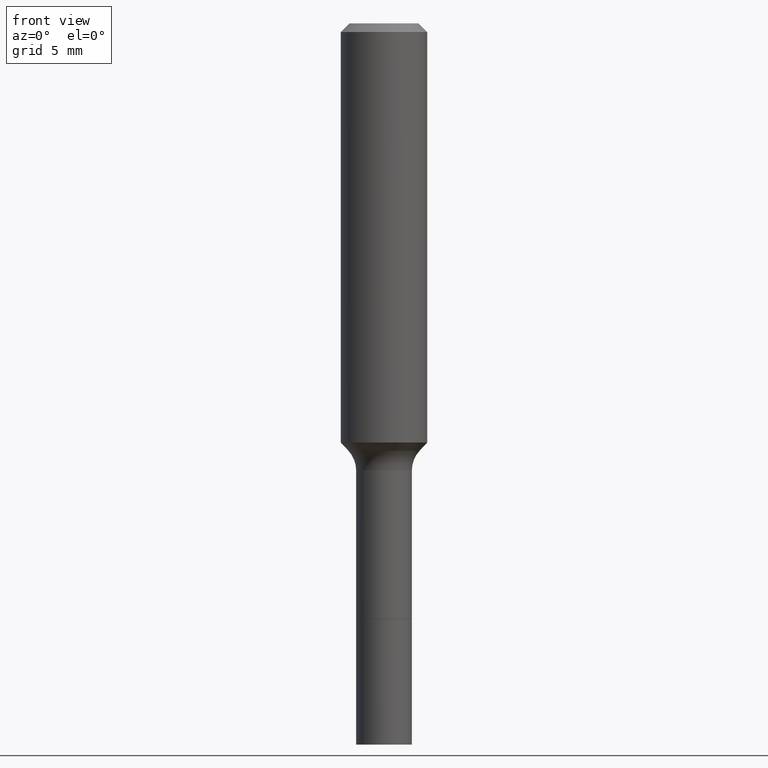
[diagram: clean part render]
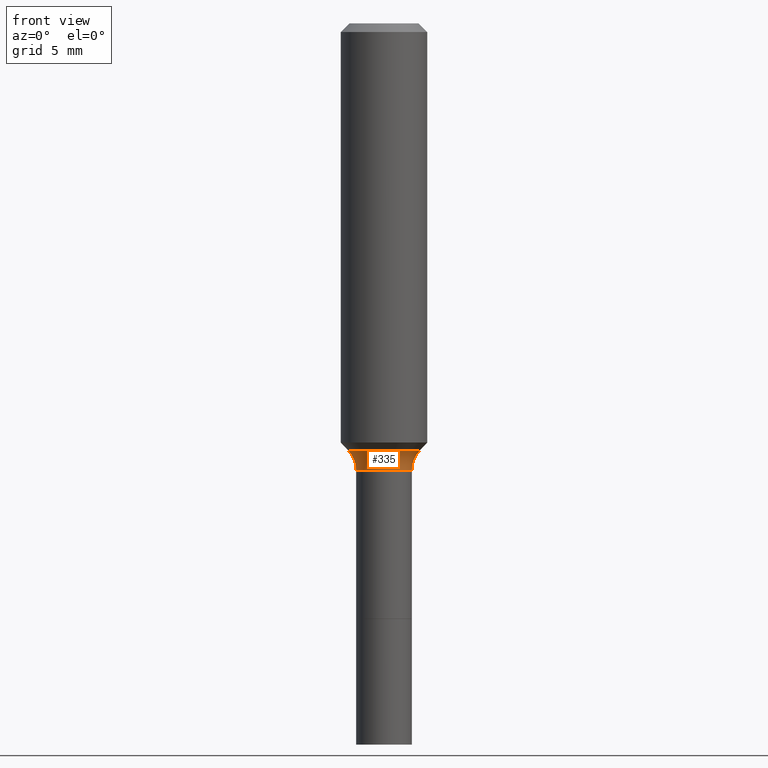
[diagram: same view with one face highlighted and labeled with its STEP entity id]
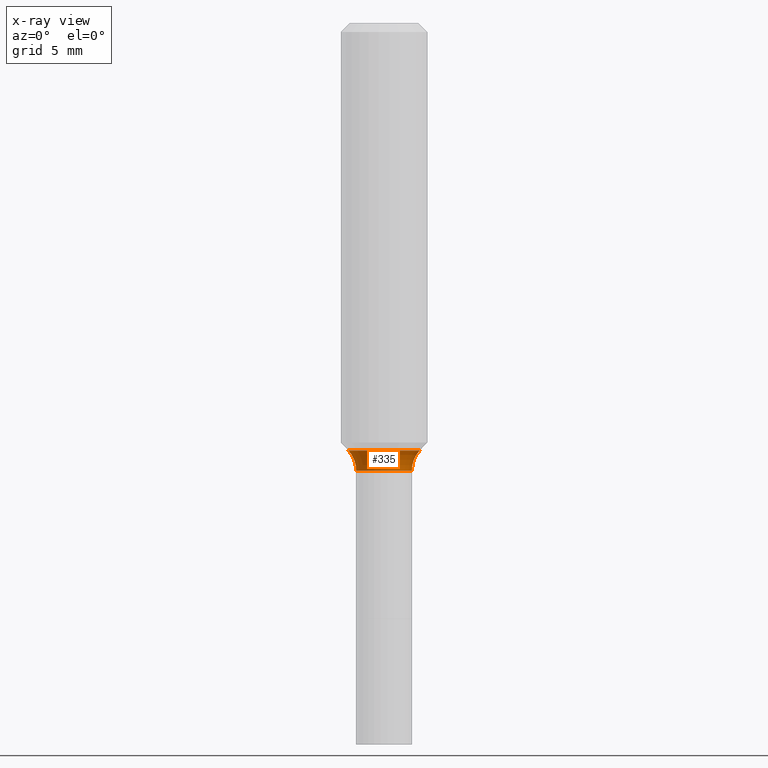
[diagram: x-ray of the same camera — body ghosted, the highlighted face saturated]
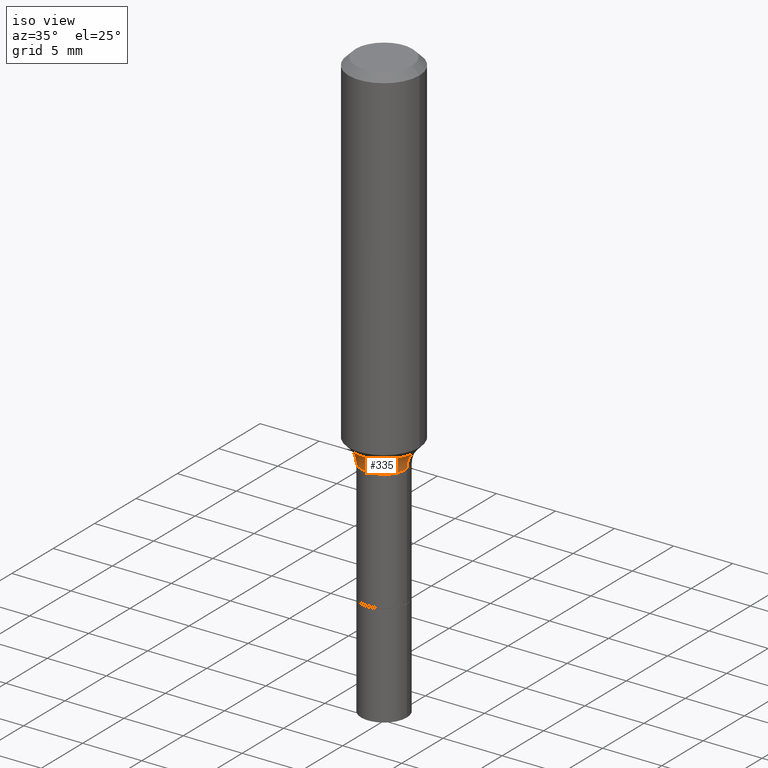
[diagram: same view with one face highlighted and labeled with its STEP entity id]
A machine part, front view. The second image highlights one B-rep face of the part: STEP entity #335.
The next image is the same camera in x-ray: the body ghosted, the highlighted face saturated — about 0% of this face is hidden behind the body in this view.
A second angle (iso view) of the same face is appended — the face is thin or edge-on in the first view.
In plain terms, the highlighted toroidal blend (fillet) surface has major radius 3.9624 mm and minor (blend) radius 2.032 mm.
Its self-contained STEP definition (entity closure, byte-faithful):
#16 = AXIS2_PLACEMENT_3D ( 'NONE', #277, #38, #42 ) ;
#21 = ORIENTED_EDGE ( 'NONE', *, *, #454, .F. ) ;
#37 = CARTESIAN_POINT ( 'NONE',  ( -0.09749170387046636466, -3.378137990455324273E-15, -1.165940131194999951 ) ) ;
#38 = DIRECTION ( 'NONE',  ( -6.982962677686266711E-15, -1.000000000000000000, 3.491481338843145583E-15 ) ) ;
#42 = DIRECTION ( 'NONE',  ( 1.000000000000000000, -6.982962677686269077E-15, 0.000000000000000000 ) ) ;
#64 = ORIENTED_EDGE ( 'NONE', *, *, #108, .T. ) ;
#71 = VERTEX_POINT ( 'NONE', #502 ) ;
#72 = DIRECTION ( 'NONE',  ( 1.000000000000000000, -6.982962677686266711E-15, 0.000000000000000000 ) ) ;
#101 = AXIS2_PLACEMENT_3D ( 'NONE', #124, #283, #154 ) ;
#108 = EDGE_CURVE ( 'NONE', #71, #485, #184, .T. ) ;
#111 = ORIENTED_EDGE ( 'NONE', *, *, #307, .F. ) ;
#124 = CARTESIAN_POINT ( 'NONE',  ( -0.1559999999999999443, -3.152906306272303331E-15, -1.220499999999999918 ) ) ;
#152 = CIRCLE ( 'NONE', #101, 0.08000000000000002942 ) ;
#154 = DIRECTION ( 'NONE',  ( -1.000000000000000000, 7.105427357601001859E-15, 0.000000000000000000 ) ) ;
#179 = CARTESIAN_POINT ( 'NONE',  ( 0.07599999999999994260, -4.792058137562214256E-15, -1.220499999999999918 ) ) ;
#184 = CIRCLE ( 'NONE', #475, 0.07599999999999994260 ) ;
#186 = DIRECTION ( 'NONE',  ( 1.000000000000000000, -6.982962677686267499E-15, 4.883557194083112901E-29 ) ) ;
#205 = VERTEX_POINT ( 'NONE', #509 ) ;
#221 = EDGE_CURVE ( 'NONE', #272, #71, #152, .T. ) ;
#240 = CARTESIAN_POINT ( 'NONE',  ( 2.851270220716778580E-29, -4.070858210275671756E-15, -1.165940131194999951 ) ) ;
#254 = AXIS2_PLACEMENT_3D ( 'NONE', #240, #316, #72 ) ;
#261 = CARTESIAN_POINT ( 'NONE',  ( 2.984694677948959472E-29, -4.261352974058059028E-15, -1.220499999999999918 ) ) ;
#266 = CIRCLE ( 'NONE', #254, 0.09749170387046635078 ) ;
#270 = EDGE_LOOP ( 'NONE', ( #111, #360, #64, #21 ) ) ;
#272 = VERTEX_POINT ( 'NONE', #37 ) ;
#277 = CARTESIAN_POINT ( 'NONE',  ( 0.1559999999999999443, -5.350695151777116698E-15, -1.220499999999999918 ) ) ;
#283 = DIRECTION ( 'NONE',  ( 7.105427357601001859E-15, 1.000000000000000000, -3.491481338843145583E-15 ) ) ;
#307 = EDGE_CURVE ( 'NONE', #272, #205, #266, .T. ) ;
#310 = AXIS2_PLACEMENT_3D ( 'NONE', #478, #336, #186 ) ;
#316 = DIRECTION ( 'NONE',  ( -2.445468806185136597E-29, 3.491481338843145583E-15, 1.000000000000000000 ) ) ;
#335 = ADVANCED_FACE ( 'NONE', ( #512 ), #410, .F. ) ;
#336 = DIRECTION ( 'NONE',  ( -2.445468806185136597E-29, 3.491481338843145583E-15, 1.000000000000000000 ) ) ;
#360 = ORIENTED_EDGE ( 'NONE', *, *, #221, .T. ) ;
#410 = TOROIDAL_SURFACE ( 'NONE', #310, 0.1559999999999999443, 0.08000000000000002942 ) ;
#415 = CIRCLE ( 'NONE', #16, 0.08000000000000002942 ) ;
#426 = DIRECTION ( 'NONE',  ( 1.000000000000000000, -6.982962677686261189E-15, 0.000000000000000000 ) ) ;
#454 = EDGE_CURVE ( 'NONE', #205, #485, #415, .T. ) ;
#475 = AXIS2_PLACEMENT_3D ( 'NONE', #261, #497, #426 ) ;
#478 = CARTESIAN_POINT ( 'NONE',  ( 2.984694677948959472E-29, -4.261352974058059028E-15, -1.220499999999999918 ) ) ;
#485 = VERTEX_POINT ( 'NONE', #179 ) ;
#497 = DIRECTION ( 'NONE',  ( -2.445468806185136597E-29, 3.491481338843145583E-15, 1.000000000000000000 ) ) ;
#502 = CARTESIAN_POINT ( 'NONE',  ( -0.07599999999999994260, -4.427492595661410183E-15, -1.220499999999999918 ) ) ;
#509 = CARTESIAN_POINT ( 'NONE',  ( 0.09749170387046636466, -4.751639139787179719E-15, -1.165940131194999951 ) ) ;
#512 = FACE_OUTER_BOUND ( 'NONE', #270, .T. ) ;